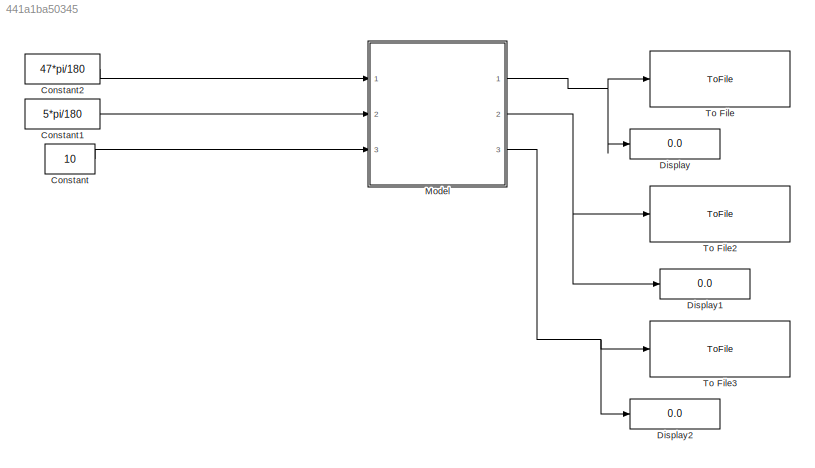
MODEL slx_441a1ba50345
KIND model
CONFIG AbsTol = auto
CONFIG EnableMultiTasking = off
CONFIG FixedStep = auto
CONFIG MaxStep = auto
CONFIG MinStep = auto
CONFIG RelTol = 1e-3
CONFIG SampleTimeConstraint = Unconstrained
CONFIG SolverName = VariableStepAuto
CONFIG StartTime = 0.0
CONFIG StopTime = 1000.0
BLOCK [Constant] Constant
  OutDataTypeStr = double
  Value = 10
BLOCK [Constant] Constant1
  Value = 5*pi/180
BLOCK [Constant] Constant2
  Value = 47*pi/180
BLOCK [Display] Display
  Decimation = 1
  Ports = [1]
BLOCK [Display] Display1
  Decimation = 1
  Ports = [1]
BLOCK [Display] Display2
  Decimation = 1
  Ports = [1]
BLOCK [ModelReference] Model
  ModelNameDialog = model_static_wind_field.slx
  ModelReferenceVersion = 1.29
  Ports = [3, 3]
BLOCK [ToFile] To File
  Commented = on
  Filename = u_W.mat
  MatrixName = u_W
  Ports = [1]
  SaveFormat = Timeseries
BLOCK [ToFile] To File2
  Commented = on
  Filename = v_W.mat
  MatrixName = v_W
  Ports = [1]
  SaveFormat = Timeseries
BLOCK [ToFile] To File3
  Commented = on
  Filename = w_W.mat
  MatrixName = w_W
  Ports = [1]
  SaveFormat = Timeseries
LINE Constant1:1 -> Model:2
LINE Constant2:1 -> Model:1
LINE Constant:1 -> Model:3
NET Model:1 -> Display:1, To File:1
NET Model:2 -> Display1:1, To File2:1
NET Model:3 -> Display2:1, To File3:1
note: NET lines group one-source signal fan-out (src -> all destinations, sorted); 1:1 wires keep LINE
